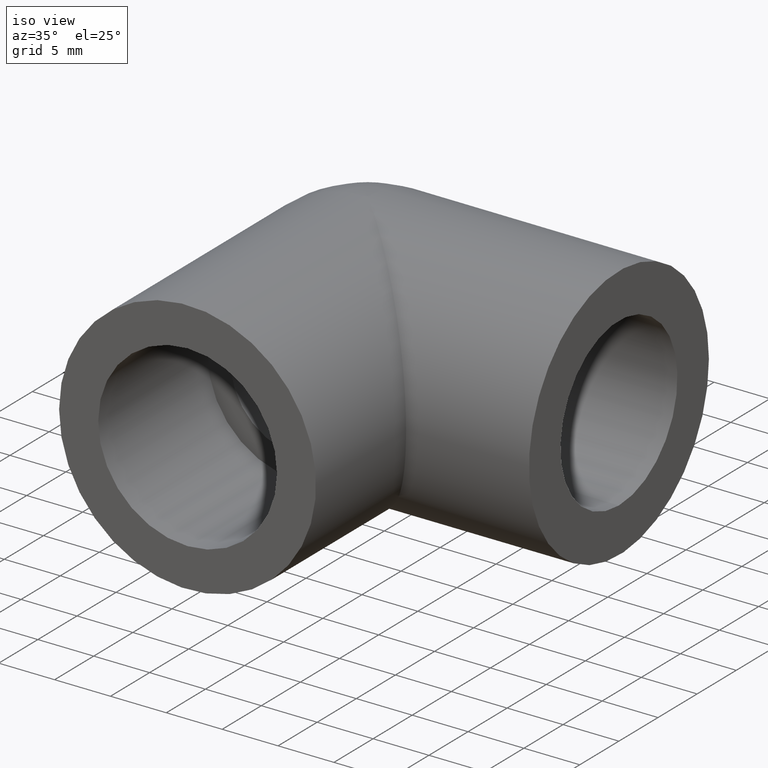
[diagram: clean part render]
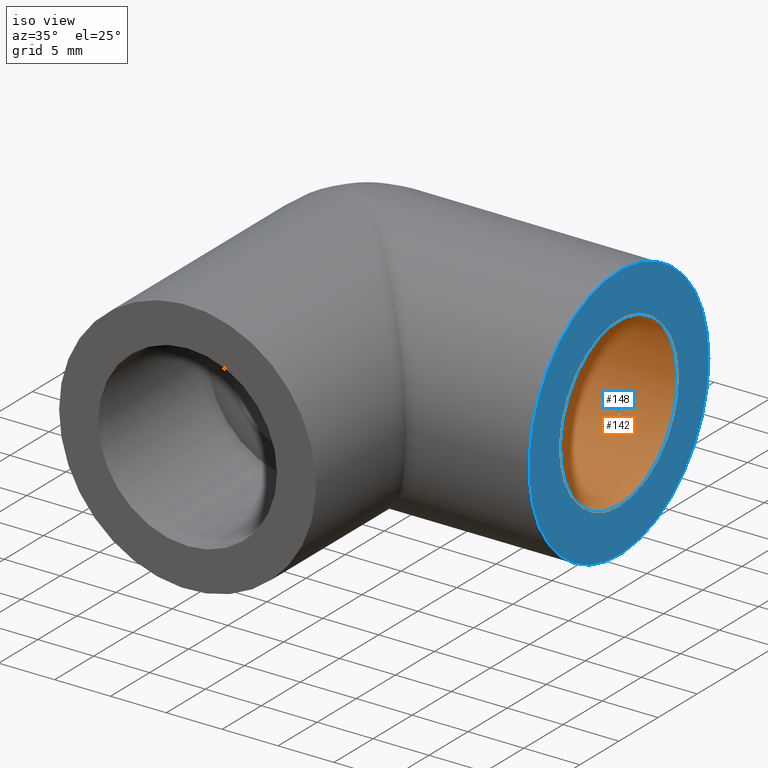
[diagram: same view with the hole feature highlighted: cylindrical wall and planar end face, labeled with their STEP entity ids]
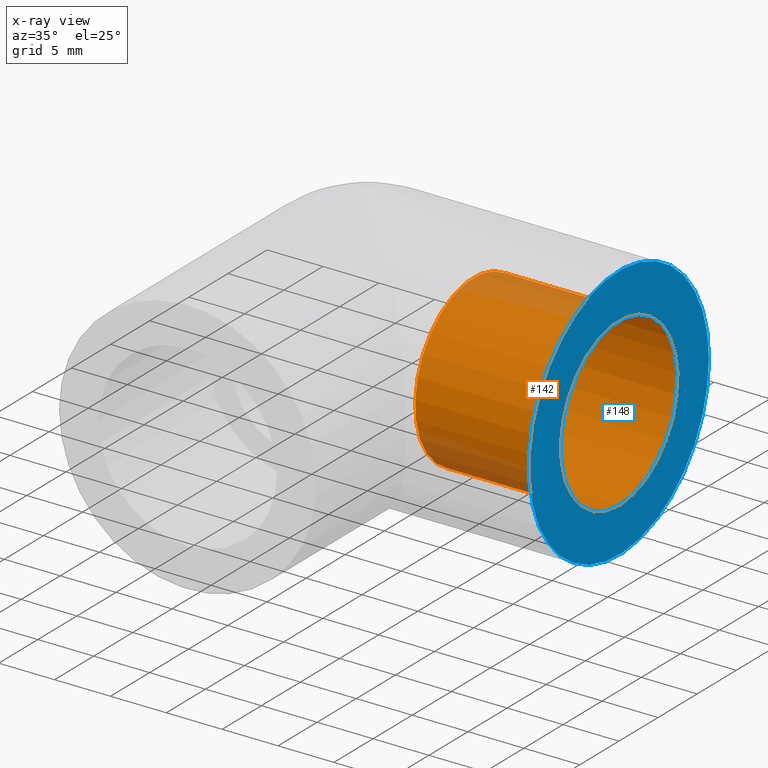
[diagram: x-ray of the same camera — body ghosted, the hole faces saturated]
A machine part, iso view. The highlighted faces form one hole feature of diameter 14.95 mm: the cylindrical wall (entity #142, orange) and its adjacent planar end face (entity #148, blue) — they share a circular edge in the B-rep.
The next image is the same camera in x-ray (body ghosted, the hole faces saturated) — the bore reads through the body.
Wall:
#27=FACE_BOUND('',#56,.T.);
#38=FACE_OUTER_BOUND('',#55,.T.);
#55=EDGE_LOOP('',(#115));
#56=EDGE_LOOP('',(#116));
#74=CIRCLE('',#163,7.475);
#75=CIRCLE('',#164,7.475);
#86=VERTEX_POINT('',#247);
#87=VERTEX_POINT('',#249);
#98=EDGE_CURVE('',#86,#86,#74,.T.);
#99=EDGE_CURVE('',#87,#87,#75,.T.);
#115=ORIENTED_EDGE('',*,*,#98,.T.);
#116=ORIENTED_EDGE('',*,*,#99,.F.);
#134=CYLINDRICAL_SURFACE('',#162,7.475);
#142=ADVANCED_FACE('',(#38,#27),#134,.F.);
#162=AXIS2_PLACEMENT_3D('',#246,#200,#201);
#163=AXIS2_PLACEMENT_3D('',#248,#202,#203);
#164=AXIS2_PLACEMENT_3D('',#250,#204,#205);
#200=DIRECTION('center_axis',(-1.,0.,0.));
#201=DIRECTION('ref_axis',(0.,0.,1.));
#202=DIRECTION('center_axis',(-1.,0.,0.));
#203=DIRECTION('ref_axis',(0.,0.,1.));
#204=DIRECTION('center_axis',(-1.,0.,0.));
#205=DIRECTION('ref_axis',(0.,0.,1.));
#246=CARTESIAN_POINT('Origin',(22.5,0.,0.));
#247=CARTESIAN_POINT('',(9.5,9.15423482362646E-16,-7.475));
#248=CARTESIAN_POINT('Origin',(9.5,0.,0.));
#249=CARTESIAN_POINT('',(22.5,9.15423482362646E-16,-7.475));
#250=CARTESIAN_POINT('Origin',(22.5,0.,0.));
End face:
#20=PLANE('',#175);
#32=FACE_BOUND('',#67,.T.);
#44=FACE_OUTER_BOUND('',#66,.T.);
#66=EDGE_LOOP('',(#129));
#67=EDGE_LOOP('',(#130));
#75=CIRCLE('',#164,7.475);
#79=CIRCLE('',#174,11.5);
#87=VERTEX_POINT('',#249);
#91=VERTEX_POINT('',#263);
#99=EDGE_CURVE('',#87,#87,#75,.T.);
#104=EDGE_CURVE('',#91,#91,#79,.T.);
#129=ORIENTED_EDGE('',*,*,#104,.T.);
#130=ORIENTED_EDGE('',*,*,#99,.T.);
#148=ADVANCED_FACE('',(#44,#32),#20,.T.);
#164=AXIS2_PLACEMENT_3D('',#250,#204,#205);
#174=AXIS2_PLACEMENT_3D('',#264,#224,#225);
#175=AXIS2_PLACEMENT_3D('',#265,#226,#227);
#204=DIRECTION('center_axis',(-1.,0.,0.));
#205=DIRECTION('ref_axis',(0.,0.,1.));
#224=DIRECTION('center_axis',(1.,0.,0.));
#225=DIRECTION('ref_axis',(0.,0.,-1.));
#226=DIRECTION('center_axis',(1.,0.,0.));
#227=DIRECTION('ref_axis',(0.,0.,-1.));
#249=CARTESIAN_POINT('',(22.5,9.15423482362646E-16,-7.475));
#250=CARTESIAN_POINT('Origin',(22.5,0.,0.));
#263=CARTESIAN_POINT('',(22.5,11.5,0.));
#264=CARTESIAN_POINT('Origin',(22.5,0.,0.));
#265=CARTESIAN_POINT('Origin',(22.5,0.,0.));